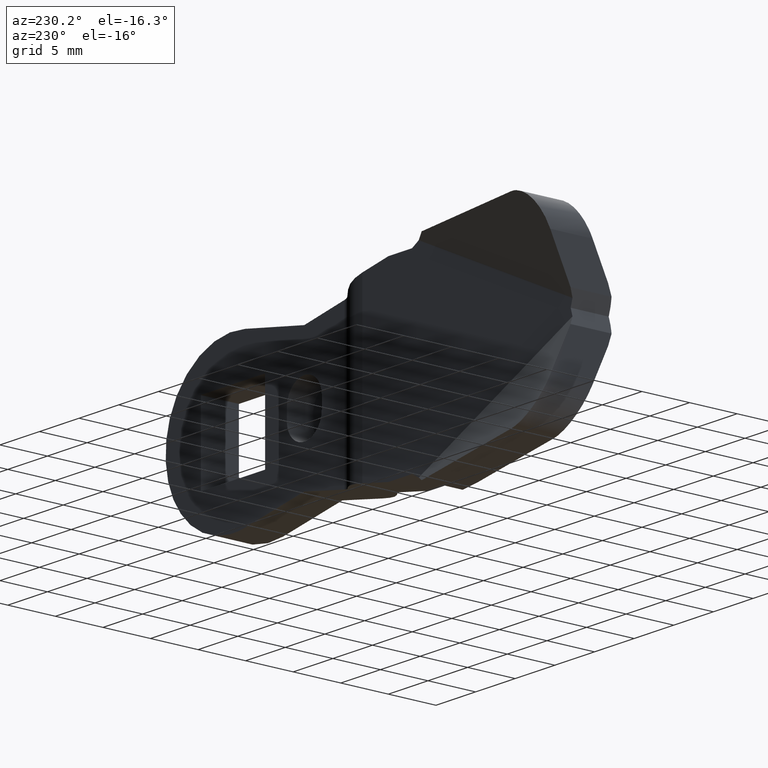
[diagram: clean part render]
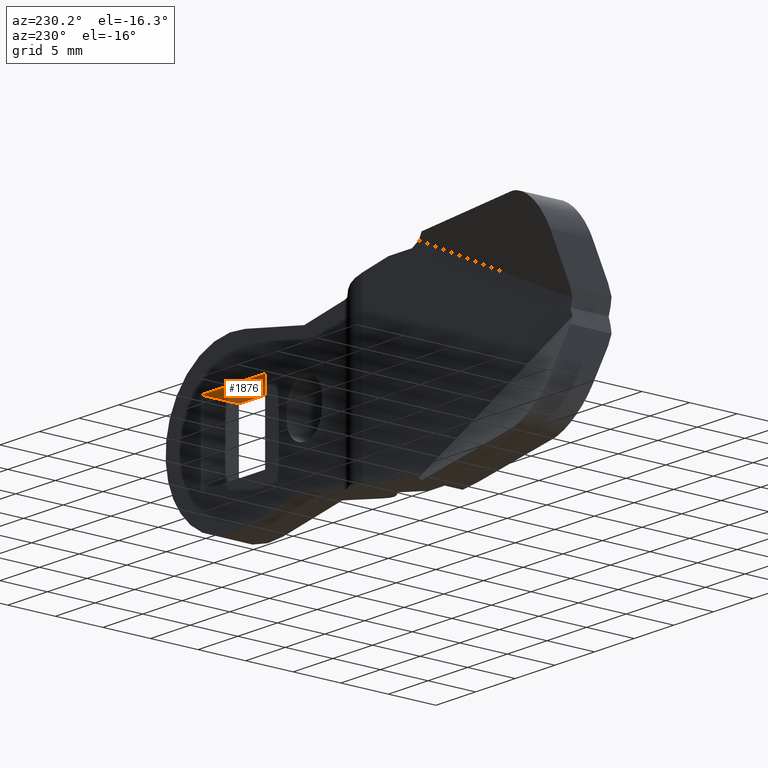
[diagram: same view with one face highlighted and labeled with its STEP entity id]
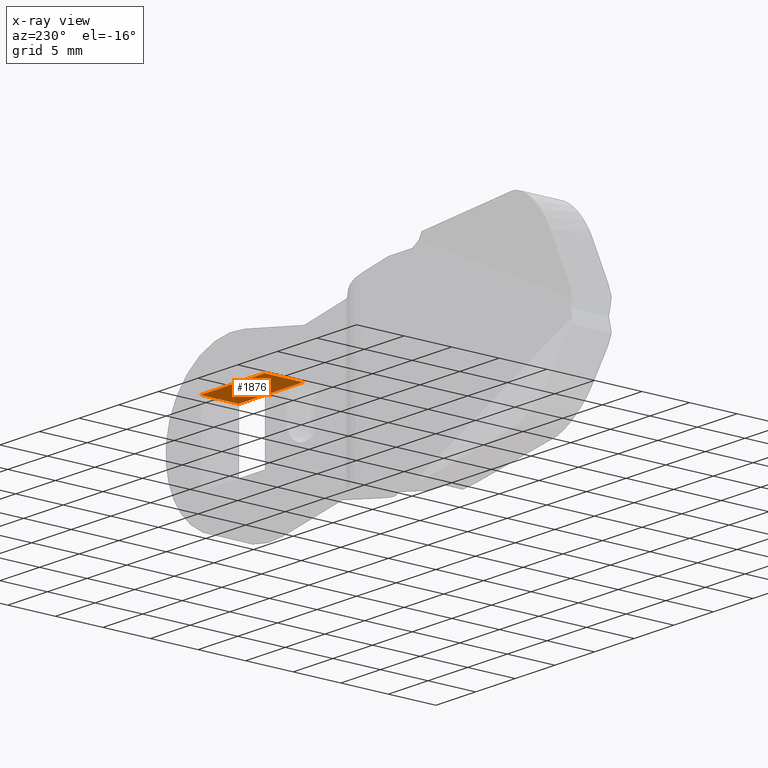
[diagram: x-ray of the same camera — body ghosted, the highlighted face saturated]
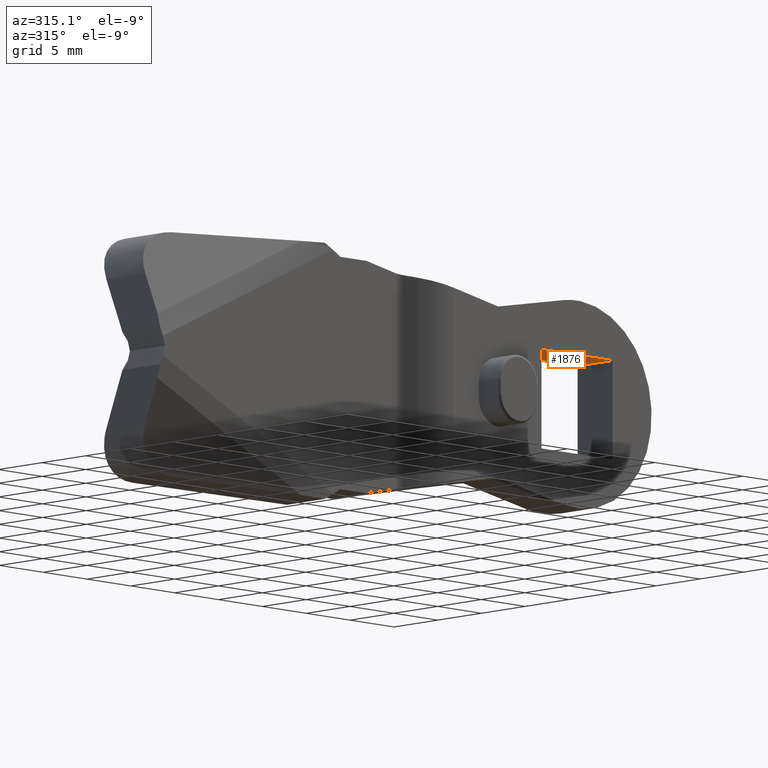
[diagram: same view with one face highlighted and labeled with its STEP entity id]
A machine part, auxiliary view. The second image highlights one B-rep face of the part: STEP entity #1876.
The next image is the same camera in x-ray: the body ghosted, the highlighted face saturated — about 6% of this face is hidden behind the body in this view.
A second angle (auxiliary view) of the same face is appended — the face is thin or edge-on in the first view.
In plain terms, the highlighted face is a freeform B-spline surface patch.
Its self-contained STEP definition (entity closure, byte-faithful):
#1827=CARTESIAN_POINT('',(-4.050000192364635,-2.000000000000115,4.050000192364690));
#1828=VERTEX_POINT('',#1827);
#1834=CARTESIAN_POINT('',(-4.050000192364635,-6.000000189999961,4.050000192364690));
#1835=VERTEX_POINT('',#1834);
#1836=CARTESIAN_POINT('',(-4.050000192364635,-6.000000189999961,4.050000192364690));
#1837=CARTESIAN_POINT('',(-4.050000192364635,-2.000000000000115,4.050000192364690));
#1838=QUASI_UNIFORM_CURVE('',1,(#1836,#1837),.UNSPECIFIED.,.F.,.U.);
#1839=EDGE_CURVE('',#1835,#1828,#1838,.T.);
#1849=CARTESIAN_POINT('',(4.454595195882547,-6.199800003991977,4.050000192364690));
#1850=CARTESIAN_POINT('',(-4.454595413141433,-6.199800003991977,4.050000192364690));
#1851=CARTESIAN_POINT('',(4.454595195882547,-1.800199899905790,4.050000192364690));
#1852=CARTESIAN_POINT('',(-4.454595413141433,-1.800199899905790,4.050000192364690));
#1853=B_SPLINE_SURFACE_WITH_KNOTS('',1,1,((#1849,#1851),(#1850,#1852)),.UNSPECIFIED.,.F.,.F.,.U.,(2,2),(2,2),(0.0,8.909190609023980),(0.0,4.399600104086187),.UNSPECIFIED.);
#1854=ORIENTED_EDGE('',*,*,#1839,.T.);
#1855=CARTESIAN_POINT('',(4.050000192364690,-2.000000000000115,4.050000192364690));
#1856=VERTEX_POINT('',#1855);
#1857=CARTESIAN_POINT('',(-4.050000192364635,-2.000000000000115,4.050000192364690));
#1858=CARTESIAN_POINT('',(4.050000192364690,-2.000000000000115,4.050000192364690));
#1859=QUASI_UNIFORM_CURVE('',1,(#1857,#1858),.UNSPECIFIED.,.F.,.U.);
#1860=EDGE_CURVE('',#1828,#1856,#1859,.T.);
#1861=ORIENTED_EDGE('',*,*,#1860,.T.);
#1862=CARTESIAN_POINT('',(4.050000192364690,-6.000000189999910,4.050000192364690));
#1863=VERTEX_POINT('',#1862);
#1864=CARTESIAN_POINT('',(4.050000192364690,-6.000000189999910,4.050000192364690));
#1865=CARTESIAN_POINT('',(4.050000192364690,-2.000000000000115,4.050000192364690));
#1866=QUASI_UNIFORM_CURVE('',1,(#1864,#1865),.UNSPECIFIED.,.F.,.U.);
#1867=EDGE_CURVE('',#1863,#1856,#1866,.T.);
#1868=ORIENTED_EDGE('',*,*,#1867,.F.);
#1869=CARTESIAN_POINT('',(-4.050000192364635,-6.000000189999961,4.050000192364690));
#1870=CARTESIAN_POINT('',(4.050000192364690,-6.000000189999910,4.050000192364690));
#1871=QUASI_UNIFORM_CURVE('',1,(#1869,#1870),.UNSPECIFIED.,.F.,.U.);
#1872=EDGE_CURVE('',#1835,#1863,#1871,.T.);
#1873=ORIENTED_EDGE('',*,*,#1872,.F.);
#1874=EDGE_LOOP('',(#1854,#1861,#1868,#1873));
#1875=FACE_OUTER_BOUND('',#1874,.T.);
#1876=ADVANCED_FACE('',(#1875),#1853,.T.);